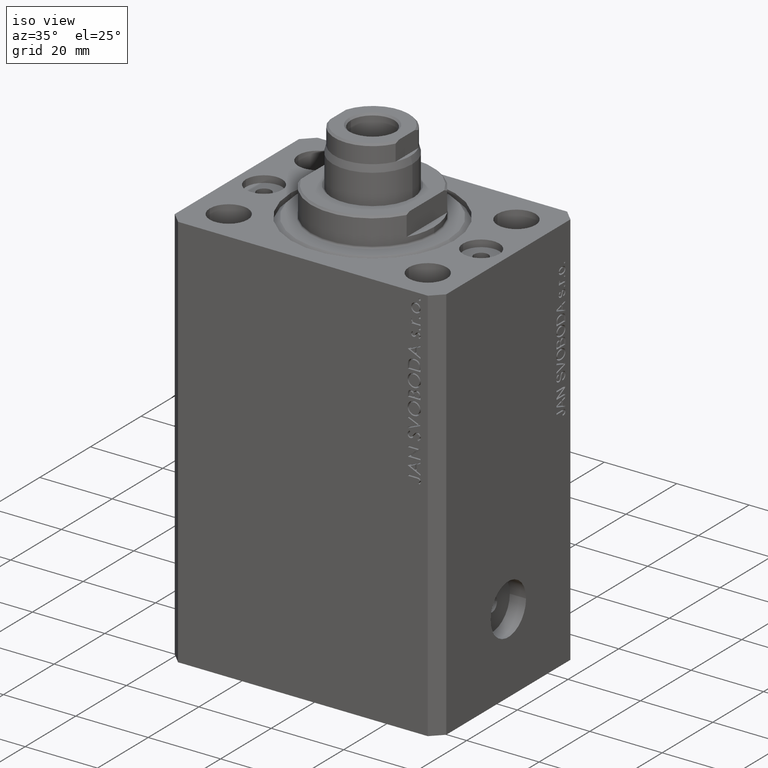
[diagram: clean part render]
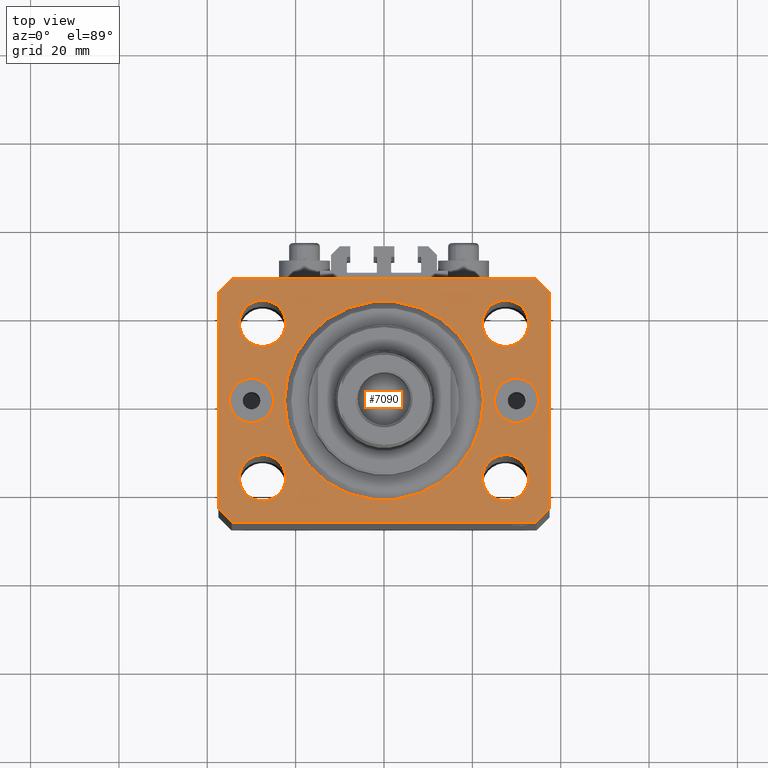
[diagram: tour spotlight — one face highlighted and labeled with its STEP entity id]
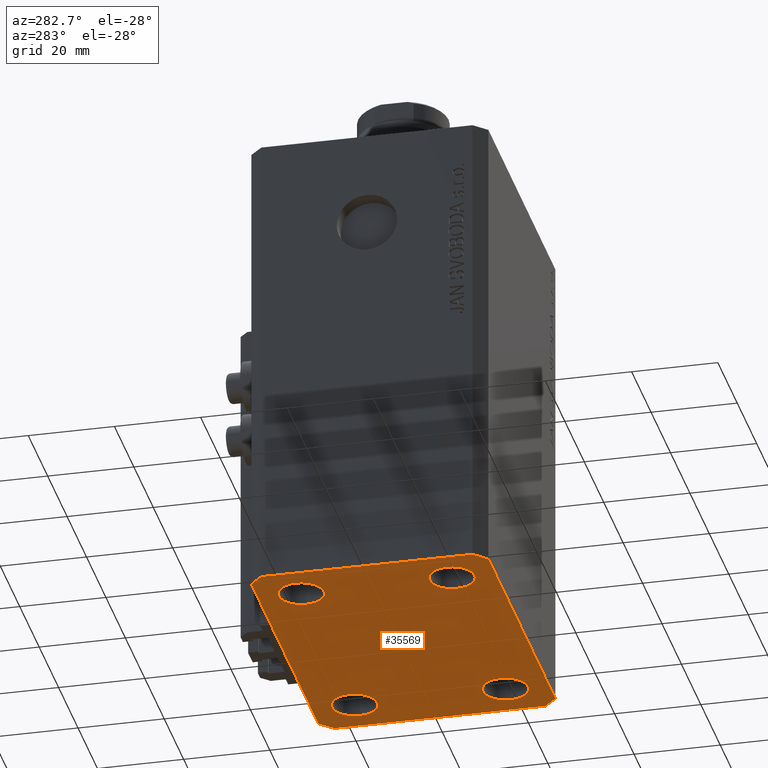
[diagram: tour spotlight — one face highlighted and labeled with its STEP entity id]
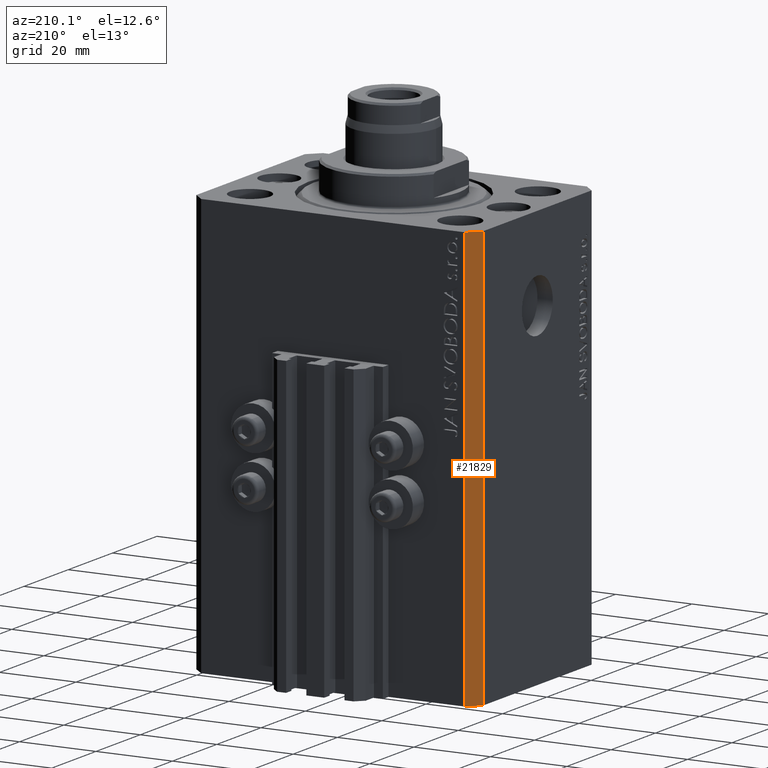
[diagram: tour spotlight — one face highlighted and labeled with its STEP entity id]
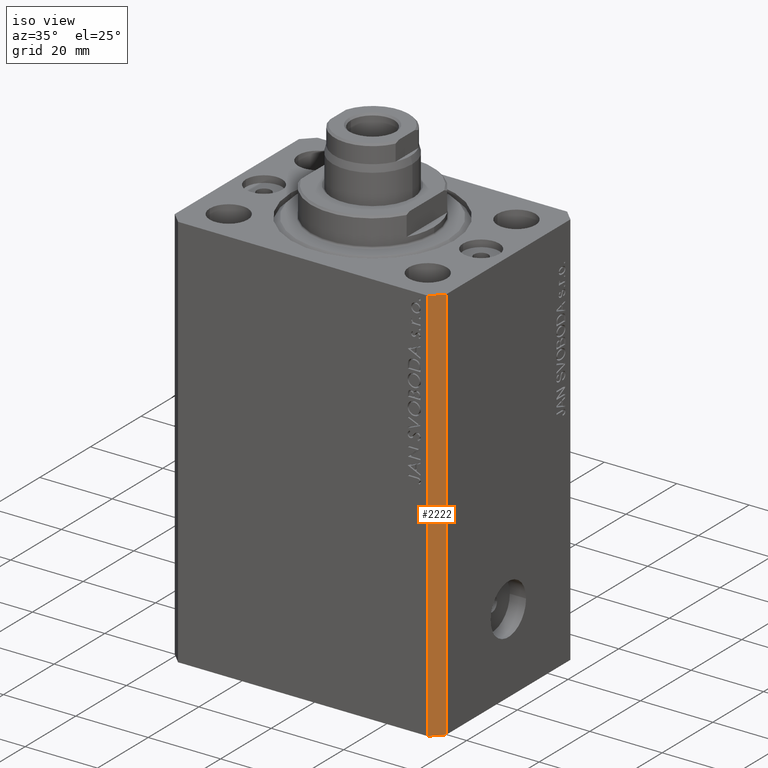
[diagram: tour spotlight — one face highlighted and labeled with its STEP entity id]
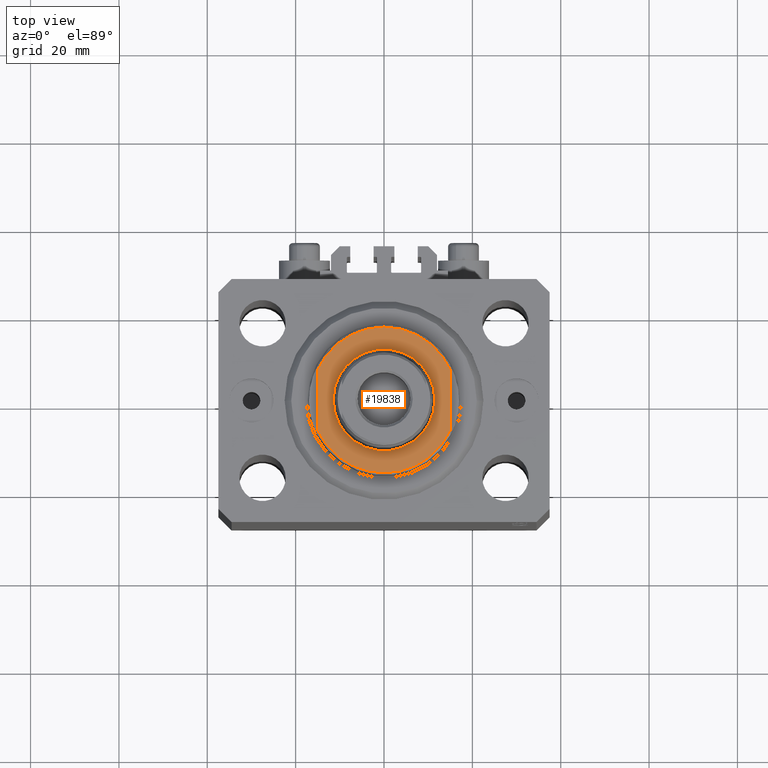
[diagram: tour spotlight — one face highlighted and labeled with its STEP entity id]
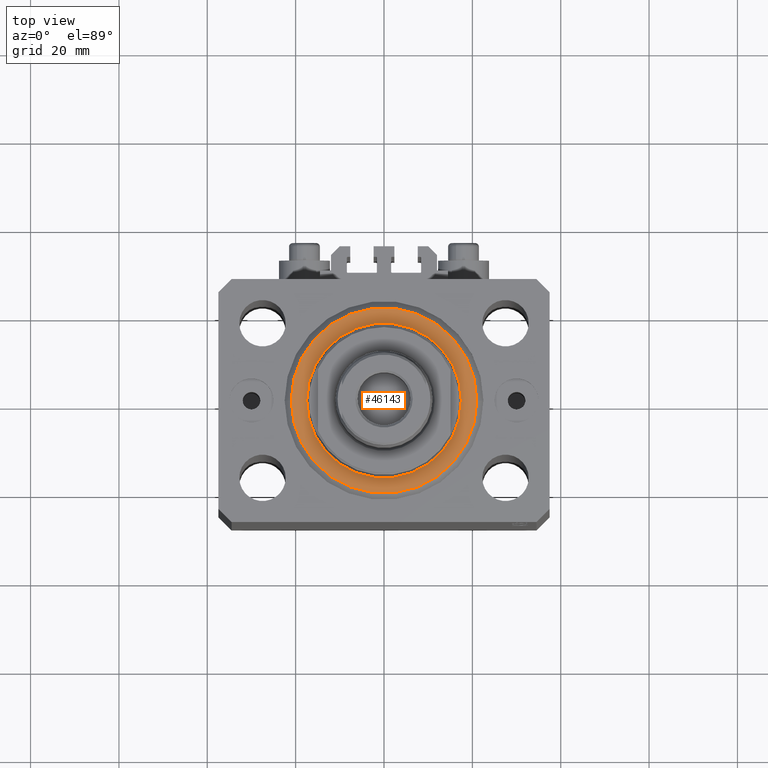
[diagram: tour spotlight — one face highlighted and labeled with its STEP entity id]
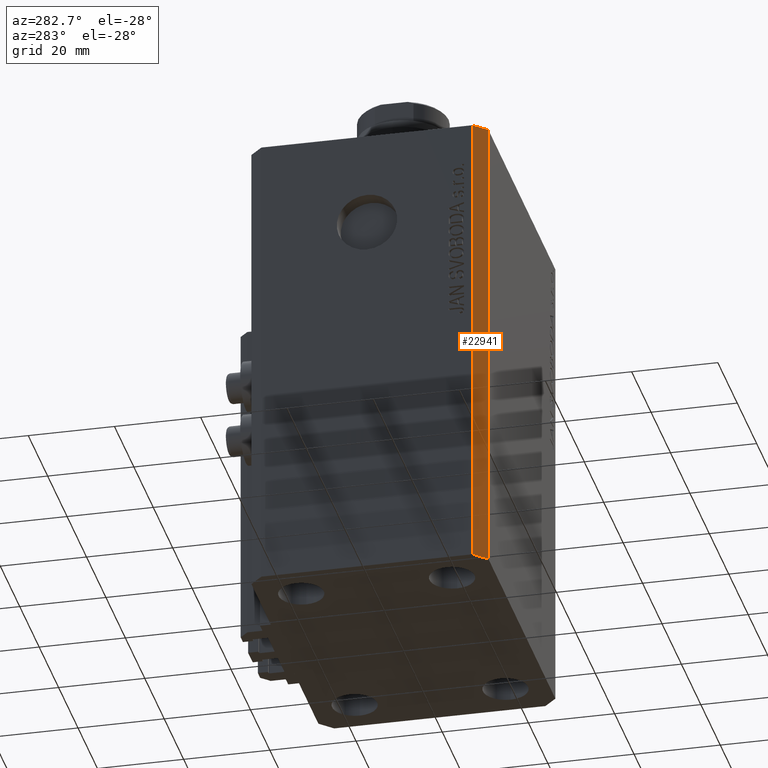
[diagram: tour spotlight — one face highlighted and labeled with its STEP entity id]
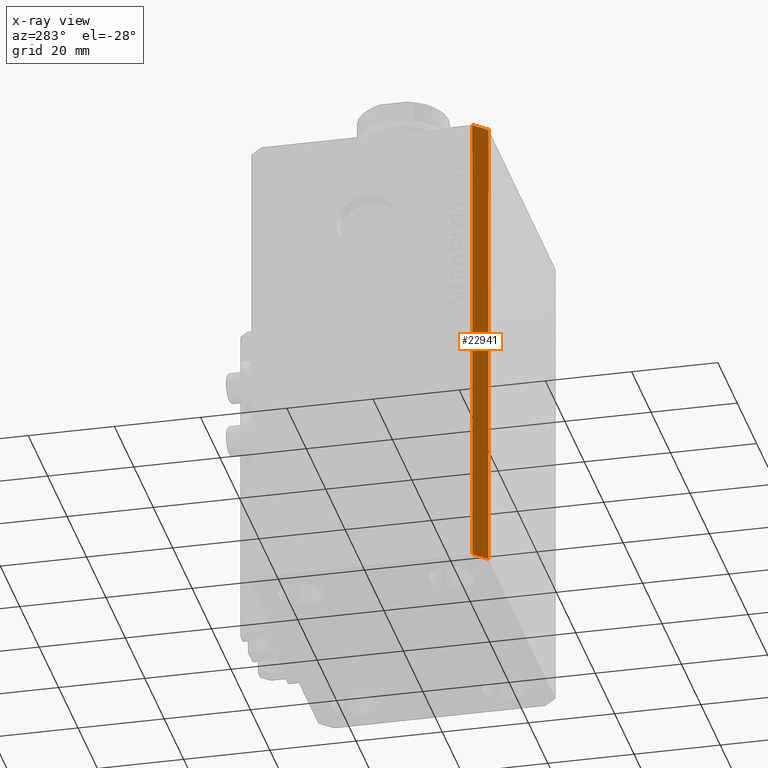
[diagram: x-ray of the same camera — body ghosted, this tour face saturated]
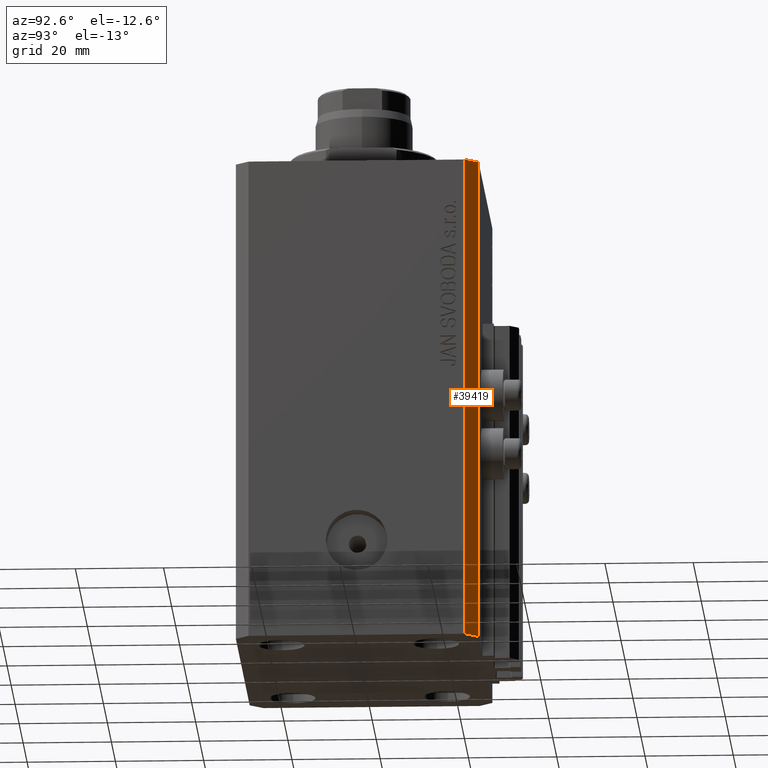
[diagram: tour spotlight — one face highlighted and labeled with its STEP entity id]
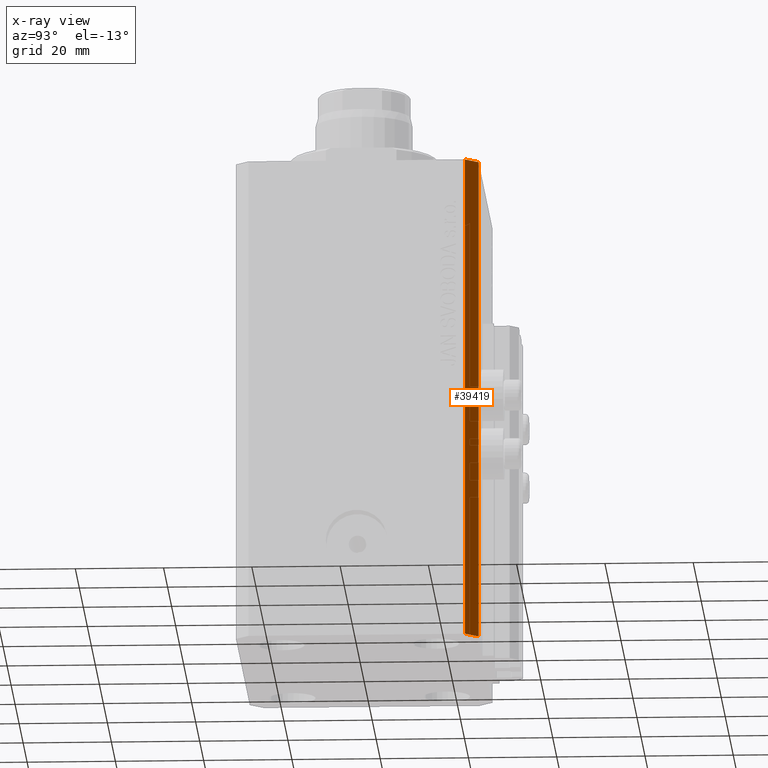
[diagram: x-ray of the same camera — body ghosted, this tour face saturated]
A machine part: a face-by-face anatomy tour. The part has 1023 B-rep faces; the first image is the clean iso view, then the 8 largest visible faces are spotlighted one at a time (largest first), each with its STEP entity span.

Face 1 — top view, entity #7090. In plain terms, the highlighted planar face has unit normal (0, 0, 1).
Definition (entity closure, byte-faithful):
#50 = AXIS2_PLACEMENT_3D ( 'NONE', #43612, #25873, #18543 ) ;
#278 = VERTEX_POINT ( 'NONE', #1542 ) ;
#403 = CARTESIAN_POINT ( 'NONE',  ( 27.49999999999999289, -17.50000000000000000, 0.000000000000000000 ) ) ;
#655 = DIRECTION ( 'NONE',  ( 1.000000000000000000, 0.000000000000000000, 0.000000000000000000 ) ) ;
#694 = ORIENTED_EDGE ( 'NONE', *, *, #12198, .T. ) ;
#714 = ORIENTED_EDGE ( 'NONE', *, *, #32537, .F. ) ;
#833 = CIRCLE ( 'NONE', #35588, 5.250000000000000888 ) ;
#1542 = CARTESIAN_POINT ( 'NONE',  ( 25.00000000000000000, 6.123233995736762338E-16, 0.000000000000000000 ) ) ;
#1549 = DIRECTION ( 'NONE',  ( -0.7071067811865471286, -0.7071067811865479058, 0.000000000000000000 ) ) ;
#1568 = EDGE_CURVE ( 'NONE', #30455, #32214, #17827, .T. ) ;
#1646 = ORIENTED_EDGE ( 'NONE', *, *, #14632, .T. ) ;
#1763 = VECTOR ( 'NONE', #12459, 1000.000000000000114 ) ;
#1964 = ORIENTED_EDGE ( 'NONE', *, *, #15884, .F. ) ;
#2130 = EDGE_LOOP ( 'NONE', ( #24155, #13497 ) ) ;
#2340 = CIRCLE ( 'NONE', #50, 5.250000000000000888 ) ;
#2792 = CARTESIAN_POINT ( 'NONE',  ( 30.00000000000000000, 0.000000000000000000, 0.000000000000000000 ) ) ;
#2811 = VECTOR ( 'NONE', #46576, 1000.000000000000000 ) ;
#3503 = CIRCLE ( 'NONE', #14829, 5.250000000000000888 ) ;
#3750 = CARTESIAN_POINT ( 'NONE',  ( 22.25000000000000000, 17.49999999999999289, 0.000000000000000000 ) ) ;
#4133 = EDGE_CURVE ( 'NONE', #34240, #12233, #3503, .T. ) ;
#4328 = VERTEX_POINT ( 'NONE', #45328 ) ;
#4541 = CIRCLE ( 'NONE', #32469, 5.250000000000000888 ) ;
#4779 = ORIENTED_EDGE ( 'NONE', *, *, #28690, .F. ) ;
#4836 = DIRECTION ( 'NONE',  ( 0.000000000000000000, 0.000000000000000000, 1.000000000000000000 ) ) ;
#4973 = FACE_BOUND ( 'NONE', #29044, .T. ) ;
#5257 = EDGE_LOOP ( 'NONE', ( #41440, #714 ) ) ;
#5274 = EDGE_LOOP ( 'NONE', ( #33661, #24455, #40272, #46314, #694, #21986, #34470, #1646 ) ) ;
#5535 = AXIS2_PLACEMENT_3D ( 'NONE', #6079, #9630, #19173 ) ;
#5716 = EDGE_CURVE ( 'NONE', #14536, #46477, #16562, .T. ) ;
#5719 = CARTESIAN_POINT ( 'NONE',  ( 34.49999999999999289, -27.49999999999999645, 0.000000000000000000 ) ) ;
#6079 = CARTESIAN_POINT ( 'NONE',  ( 0.000000000000000000, 0.000000000000000000, 0.000000000000000000 ) ) ;
#6135 = AXIS2_PLACEMENT_3D ( 'NONE', #6146, #41010, #37915 ) ;
#6146 = CARTESIAN_POINT ( 'NONE',  ( 27.50000000000000000, 17.49999999999999289, 0.000000000000000000 ) ) ;
#6391 = CIRCLE ( 'NONE', #15425, 5.250000000000000888 ) ;
#7020 = CARTESIAN_POINT ( 'NONE',  ( 34.50000000000056843, 27.50000000000000000, 0.000000000000000000 ) ) ;
#7090 = ADVANCED_FACE ( 'NONE', ( #38230, #34688, #12303, #19415, #26747, #40940, #15368, #4973 ), #40466, .T. ) ;
#8128 = EDGE_CURVE ( 'NONE', #278, #42022, #14028, .T. ) ;
#9465 = CIRCLE ( 'NONE', #46470, 5.000000000000000888 ) ;
#9630 = DIRECTION ( 'NONE',  ( 0.000000000000000000, 0.000000000000000000, 1.000000000000000000 ) ) ;
#10062 = DIRECTION ( 'NONE',  ( 0.000000000000000000, -0.000000000000000000, -1.000000000000000000 ) ) ;
#10093 = DIRECTION ( 'NONE',  ( 1.000000000000000000, 0.000000000000000000, 0.000000000000000000 ) ) ;
#10335 = AXIS2_PLACEMENT_3D ( 'NONE', #32287, #10062, #43164 ) ;
#10838 = EDGE_CURVE ( 'NONE', #34090, #15133, #18741, .T. ) ;
#11064 = DIRECTION ( 'NONE',  ( 0.000000000000000000, 0.000000000000000000, 1.000000000000000000 ) ) ;
#11149 = EDGE_CURVE ( 'NONE', #30901, #14536, #21015, .T. ) ;
#12180 = LINE ( 'NONE', #41062, #18913 ) ;
#12198 = EDGE_CURVE ( 'NONE', #46477, #34084, #12231, .T. ) ;
#12231 = LINE ( 'NONE', #26677, #38444 ) ;
#12233 = VERTEX_POINT ( 'NONE', #27150 ) ;
#12303 = FACE_BOUND ( 'NONE', #2130, .T. ) ;
#12459 = DIRECTION ( 'NONE',  ( -0.7071067811865364705, 0.7071067811865584529, 0.000000000000000000 ) ) ;
#13215 = ORIENTED_EDGE ( 'NONE', *, *, #34890, .T. ) ;
#13222 = CARTESIAN_POINT ( 'NONE',  ( -37.49999999999999289, 24.50000000000000000, 0.000000000000000000 ) ) ;
#13497 = ORIENTED_EDGE ( 'NONE', *, *, #26598, .F. ) ;
#13747 = CARTESIAN_POINT ( 'NONE',  ( -22.25000000000000000, 17.49999999999999645, 0.000000000000000000 ) ) ;
#13936 = CARTESIAN_POINT ( 'NONE',  ( -37.49999999999999289, -24.50000000000000000, 0.000000000000000000 ) ) ;
#13978 = CARTESIAN_POINT ( 'NONE',  ( -24.99999999999999645, 0.000000000000000000, 0.000000000000000000 ) ) ;
#14028 = CIRCLE ( 'NONE', #20102, 4.999999999999997335 ) ;
#14428 = VECTOR ( 'NONE', #42103, 1000.000000000000000 ) ;
#14518 = DIRECTION ( 'NONE',  ( 0.000000000000000000, 0.000000000000000000, 1.000000000000000000 ) ) ;
#14536 = VERTEX_POINT ( 'NONE', #44866 ) ;
#14546 = CARTESIAN_POINT ( 'NONE',  ( -34.49999999999999289, 27.50000000000000000, 0.000000000000000000 ) ) ;
#14632 = EDGE_CURVE ( 'NONE', #32214, #23952, #44629, .T. ) ;
#14829 = AXIS2_PLACEMENT_3D ( 'NONE', #403, #29969, #36358 ) ;
#14908 = CARTESIAN_POINT ( 'NONE',  ( -27.49999999999999289, -17.50000000000000000, 0.000000000000000000 ) ) ;
#15096 = CIRCLE ( 'NONE', #27962, 5.250000000000000888 ) ;
#15133 = VERTEX_POINT ( 'NONE', #46430 ) ;
#15368 = FACE_BOUND ( 'NONE', #23526, .T. ) ;
#15425 = AXIS2_PLACEMENT_3D ( 'NONE', #14908, #36683, #16322 ) ;
#15534 = DIRECTION ( 'NONE',  ( 0.000000000000000000, 0.000000000000000000, 1.000000000000000000 ) ) ;
#15537 = VERTEX_POINT ( 'NONE', #3750 ) ;
#15791 = CIRCLE ( 'NONE', #42247, 5.000000000000000888 ) ;
#15884 = EDGE_CURVE ( 'NONE', #29371, #25185, #4541, .T. ) ;
#16232 = EDGE_LOOP ( 'NONE', ( #1964, #4779 ) ) ;
#16322 = DIRECTION ( 'NONE',  ( 1.000000000000000000, 0.000000000000000000, 0.000000000000000000 ) ) ;
#16424 = CARTESIAN_POINT ( 'NONE',  ( 27.50000000000000000, 17.49999999999999289, 0.000000000000000000 ) ) ;
#16562 = LINE ( 'NONE', #13936, #2811 ) ;
#16745 = DIRECTION ( 'NONE',  ( 0.000000000000000000, -0.000000000000000000, -1.000000000000000000 ) ) ;
#17359 = CARTESIAN_POINT ( 'NONE',  ( -32.75000000000000000, 17.49999999999999645, 0.000000000000000000 ) ) ;
#17498 = ORIENTED_EDGE ( 'NONE', *, *, #31497, .F. ) ;
#17827 = LINE ( 'NONE', #32259, #46294 ) ;
#18095 = EDGE_CURVE ( 'NONE', #23952, #27416, #30531, .T. ) ;
#18119 = CARTESIAN_POINT ( 'NONE',  ( -30.00000000000000000, 0.000000000000000000, 0.000000000000000000 ) ) ;
#18335 = EDGE_CURVE ( 'NONE', #4328, #15537, #26539, .T. ) ;
#18543 = DIRECTION ( 'NONE',  ( 1.000000000000000000, 0.000000000000000000, 0.000000000000000000 ) ) ;
#18741 = CIRCLE ( 'NONE', #45187, 22.50000000000000355 ) ;
#18913 = VECTOR ( 'NONE', #1549, 1000.000000000000000 ) ;
#19173 = DIRECTION ( 'NONE',  ( 1.000000000000000000, 0.000000000000000000, -0.000000000000000000 ) ) ;
#19415 = FACE_BOUND ( 'NONE', #20738, .T. ) ;
#19796 = CARTESIAN_POINT ( 'NONE',  ( 37.50000000000051870, 24.49999999999995381, 0.000000000000000000 ) ) ;
#19944 = ORIENTED_EDGE ( 'NONE', *, *, #4133, .F. ) ;
#20052 = EDGE_CURVE ( 'NONE', #30714, #37246, #15096, .T. ) ;
#20102 = AXIS2_PLACEMENT_3D ( 'NONE', #2792, #16745, #27872 ) ;
#20229 = DIRECTION ( 'NONE',  ( 1.000000000000000000, 0.000000000000000000, 0.000000000000000000 ) ) ;
#20738 = EDGE_LOOP ( 'NONE', ( #22683, #19944 ) ) ;
#20852 = CIRCLE ( 'NONE', #32935, 22.50000000000000355 ) ;
#21015 = LINE ( 'NONE', #13222, #30888 ) ;
#21124 = VECTOR ( 'NONE', #41235, 1000.000000000000114 ) ;
#21800 = VERTEX_POINT ( 'NONE', #36566 ) ;
#21986 = ORIENTED_EDGE ( 'NONE', *, *, #37988, .T. ) ;
#22683 = ORIENTED_EDGE ( 'NONE', *, *, #39900, .F. ) ;
#22930 = ORIENTED_EDGE ( 'NONE', *, *, #8128, .T. ) ;
#23526 = EDGE_LOOP ( 'NONE', ( #17498, #46445 ) ) ;
#23952 = VERTEX_POINT ( 'NONE', #7020 ) ;
#24155 = ORIENTED_EDGE ( 'NONE', *, *, #18335, .F. ) ;
#24455 = ORIENTED_EDGE ( 'NONE', *, *, #42581, .T. ) ;
#24489 = DIRECTION ( 'NONE',  ( 1.000000000000000000, 0.000000000000000000, 0.000000000000000000 ) ) ;
#25185 = VERTEX_POINT ( 'NONE', #43465 ) ;
#25252 = ORIENTED_EDGE ( 'NONE', *, *, #41905, .F. ) ;
#25779 = ORIENTED_EDGE ( 'NONE', *, *, #20052, .F. ) ;
#25873 = DIRECTION ( 'NONE',  ( 0.000000000000000000, 0.000000000000000000, 1.000000000000000000 ) ) ;
#26140 = CARTESIAN_POINT ( 'NONE',  ( 37.50000000000051870, 24.49999999999995381, 0.000000000000000000 ) ) ;
#26539 = CIRCLE ( 'NONE', #6135, 5.250000000000000888 ) ;
#26598 = EDGE_CURVE ( 'NONE', #15537, #4328, #32688, .T. ) ;
#26677 = CARTESIAN_POINT ( 'NONE',  ( -34.49999999999998579, -27.49999999999999645, 0.000000000000000000 ) ) ;
#26747 = FACE_BOUND ( 'NONE', #16232, .T. ) ;
#27150 = CARTESIAN_POINT ( 'NONE',  ( 32.74999999999999289, -17.50000000000000000, 0.000000000000000000 ) ) ;
#27416 = VERTEX_POINT ( 'NONE', #14546 ) ;
#27480 = CARTESIAN_POINT ( 'NONE',  ( 0.000000000000000000, 0.000000000000000000, 0.000000000000000000 ) ) ;
#27681 = CARTESIAN_POINT ( 'NONE',  ( 34.50000000000056843, 27.50000000000000000, 0.000000000000000000 ) ) ;
#27872 = DIRECTION ( 'NONE',  ( 1.000000000000000000, 0.000000000000000000, 0.000000000000000000 ) ) ;
#27962 = AXIS2_PLACEMENT_3D ( 'NONE', #28972, #14518, #24489 ) ;
#28491 = DIRECTION ( 'NONE',  ( 1.076236605503979380E-14, 1.000000000000000000, 0.000000000000000000 ) ) ;
#28497 = CARTESIAN_POINT ( 'NONE',  ( -27.49999999999999289, -17.50000000000000000, 0.000000000000000000 ) ) ;
#28690 = EDGE_CURVE ( 'NONE', #25185, #29371, #6391, .T. ) ;
#28972 = CARTESIAN_POINT ( 'NONE',  ( -27.50000000000000000, 17.49999999999999645, 0.000000000000000000 ) ) ;
#29044 = EDGE_LOOP ( 'NONE', ( #13215, #22930 ) ) ;
#29371 = VERTEX_POINT ( 'NONE', #43870 ) ;
#29969 = DIRECTION ( 'NONE',  ( 0.000000000000000000, 0.000000000000000000, 1.000000000000000000 ) ) ;
#30455 = VERTEX_POINT ( 'NONE', #34717 ) ;
#30458 = CARTESIAN_POINT ( 'NONE',  ( -30.00000000000000000, 0.000000000000000000, 0.000000000000000000 ) ) ;
#30531 = LINE ( 'NONE', #27681, #14428 ) ;
#30714 = VERTEX_POINT ( 'NONE', #13747 ) ;
#30888 = VECTOR ( 'NONE', #46093, 1000.000000000000000 ) ;
#30901 = VERTEX_POINT ( 'NONE', #37387 ) ;
#31497 = EDGE_CURVE ( 'NONE', #38060, #21800, #9465, .T. ) ;
#31551 = CARTESIAN_POINT ( 'NONE',  ( 22.24999999999999289, -17.50000000000000000, 0.000000000000000000 ) ) ;
#31580 = DIRECTION ( 'NONE',  ( 0.000000000000000000, 0.000000000000000000, 1.000000000000000000 ) ) ;
#31729 = DIRECTION ( 'NONE',  ( 1.000000000000000000, 0.000000000000000000, 0.000000000000000000 ) ) ;
#32123 = CARTESIAN_POINT ( 'NONE',  ( -34.49999999999998579, -27.49999999999999645, 0.000000000000000000 ) ) ;
#32214 = VERTEX_POINT ( 'NONE', #26140 ) ;
#32259 = CARTESIAN_POINT ( 'NONE',  ( 37.49999999999999289, -24.50000000000000000, 0.000000000000000000 ) ) ;
#32287 = CARTESIAN_POINT ( 'NONE',  ( 30.00000000000000000, 0.000000000000000000, 0.000000000000000000 ) ) ;
#32392 = EDGE_LOOP ( 'NONE', ( #25779, #25252 ) ) ;
#32469 = AXIS2_PLACEMENT_3D ( 'NONE', #28497, #31580, #20229 ) ;
#32537 = EDGE_CURVE ( 'NONE', #15133, #34090, #20852, .T. ) ;
#32688 = CIRCLE ( 'NONE', #36463, 5.250000000000000888 ) ;
#32889 = CARTESIAN_POINT ( 'NONE',  ( 22.50000000000000355, 0.000000000000000000, 0.000000000000000000 ) ) ;
#32935 = AXIS2_PLACEMENT_3D ( 'NONE', #35681, #11064, #655 ) ;
#33075 = CARTESIAN_POINT ( 'NONE',  ( 34.99999999999999289, 0.000000000000000000, 0.000000000000000000 ) ) ;
#33120 = CARTESIAN_POINT ( 'NONE',  ( 34.49999999999999289, -27.49999999999999645, 0.000000000000000000 ) ) ;
#33661 = ORIENTED_EDGE ( 'NONE', *, *, #18095, .T. ) ;
#34084 = VERTEX_POINT ( 'NONE', #33120 ) ;
#34090 = VERTEX_POINT ( 'NONE', #32889 ) ;
#34240 = VERTEX_POINT ( 'NONE', #31551 ) ;
#34245 = DIRECTION ( 'NONE',  ( 1.000000000000000000, 0.000000000000000000, 0.000000000000000000 ) ) ;
#34250 = DIRECTION ( 'NONE',  ( 1.000000000000000000, 0.000000000000000000, 0.000000000000000000 ) ) ;
#34470 = ORIENTED_EDGE ( 'NONE', *, *, #1568, .T. ) ;
#34688 = FACE_BOUND ( 'NONE', #32392, .T. ) ;
#34717 = CARTESIAN_POINT ( 'NONE',  ( 37.49999999999999289, -24.50000000000000000, 0.000000000000000000 ) ) ;
#34890 = EDGE_CURVE ( 'NONE', #42022, #278, #43567, .T. ) ;
#35588 = AXIS2_PLACEMENT_3D ( 'NONE', #38775, #42328, #36379 ) ;
#35681 = CARTESIAN_POINT ( 'NONE',  ( 0.000000000000000000, 0.000000000000000000, 0.000000000000000000 ) ) ;
#36358 = DIRECTION ( 'NONE',  ( 1.000000000000000000, 0.000000000000000000, 0.000000000000000000 ) ) ;
#36379 = DIRECTION ( 'NONE',  ( 1.000000000000000000, 0.000000000000000000, 0.000000000000000000 ) ) ;
#36463 = AXIS2_PLACEMENT_3D ( 'NONE', #16424, #4836, #37952 ) ;
#36566 = CARTESIAN_POINT ( 'NONE',  ( -34.99999999999999289, 6.123233995736768255E-16, 0.000000000000000000 ) ) ;
#36599 = EDGE_CURVE ( 'NONE', #21800, #38060, #15791, .T. ) ;
#36683 = DIRECTION ( 'NONE',  ( 0.000000000000000000, 0.000000000000000000, 1.000000000000000000 ) ) ;
#37246 = VERTEX_POINT ( 'NONE', #17359 ) ;
#37387 = CARTESIAN_POINT ( 'NONE',  ( -37.49999999999999289, 24.50000000000000000, 0.000000000000000000 ) ) ;
#37677 = LINE ( 'NONE', #5719, #21124 ) ;
#37915 = DIRECTION ( 'NONE',  ( 1.000000000000000000, 0.000000000000000000, 0.000000000000000000 ) ) ;
#37952 = DIRECTION ( 'NONE',  ( 1.000000000000000000, 0.000000000000000000, 0.000000000000000000 ) ) ;
#37988 = EDGE_CURVE ( 'NONE', #34084, #30455, #37677, .T. ) ;
#38060 = VERTEX_POINT ( 'NONE', #13978 ) ;
#38230 = FACE_OUTER_BOUND ( 'NONE', #5274, .T. ) ;
#38444 = VECTOR ( 'NONE', #34250, 1000.000000000000000 ) ;
#38775 = CARTESIAN_POINT ( 'NONE',  ( -27.50000000000000000, 17.49999999999999645, 0.000000000000000000 ) ) ;
#39885 = DIRECTION ( 'NONE',  ( 0.000000000000000000, 0.000000000000000000, 1.000000000000000000 ) ) ;
#39900 = EDGE_CURVE ( 'NONE', #12233, #34240, #2340, .T. ) ;
#40272 = ORIENTED_EDGE ( 'NONE', *, *, #11149, .T. ) ;
#40466 = PLANE ( 'NONE',  #5535 ) ;
#40940 = FACE_BOUND ( 'NONE', #5257, .T. ) ;
#41010 = DIRECTION ( 'NONE',  ( 0.000000000000000000, 0.000000000000000000, 1.000000000000000000 ) ) ;
#41062 = CARTESIAN_POINT ( 'NONE',  ( -34.49999999999999289, 27.50000000000000000, 0.000000000000000000 ) ) ;
#41235 = DIRECTION ( 'NONE',  ( 0.7071067811865474617, 0.7071067811865474617, 0.000000000000000000 ) ) ;
#41440 = ORIENTED_EDGE ( 'NONE', *, *, #10838, .F. ) ;
#41905 = EDGE_CURVE ( 'NONE', #37246, #30714, #833, .T. ) ;
#42022 = VERTEX_POINT ( 'NONE', #33075 ) ;
#42103 = DIRECTION ( 'NONE',  ( -1.000000000000000000, 0.000000000000000000, 0.000000000000000000 ) ) ;
#42247 = AXIS2_PLACEMENT_3D ( 'NONE', #30458, #15534, #34245 ) ;
#42328 = DIRECTION ( 'NONE',  ( 0.000000000000000000, 0.000000000000000000, 1.000000000000000000 ) ) ;
#42371 = DIRECTION ( 'NONE',  ( 0.000000000000000000, 0.000000000000000000, 1.000000000000000000 ) ) ;
#42581 = EDGE_CURVE ( 'NONE', #27416, #30901, #12180, .T. ) ;
#43164 = DIRECTION ( 'NONE',  ( 1.000000000000000000, 0.000000000000000000, 0.000000000000000000 ) ) ;
#43465 = CARTESIAN_POINT ( 'NONE',  ( -32.74999999999999289, -17.50000000000000000, 0.000000000000000000 ) ) ;
#43567 = CIRCLE ( 'NONE', #10335, 4.999999999999997335 ) ;
#43612 = CARTESIAN_POINT ( 'NONE',  ( 27.49999999999999289, -17.50000000000000000, 0.000000000000000000 ) ) ;
#43870 = CARTESIAN_POINT ( 'NONE',  ( -22.24999999999999289, -17.50000000000000000, 0.000000000000000000 ) ) ;
#44629 = LINE ( 'NONE', #19796, #1763 ) ;
#44866 = CARTESIAN_POINT ( 'NONE',  ( -37.49999999999999289, -24.50000000000000000, 0.000000000000000000 ) ) ;
#45187 = AXIS2_PLACEMENT_3D ( 'NONE', #27480, #42371, #31729 ) ;
#45328 = CARTESIAN_POINT ( 'NONE',  ( 32.75000000000000000, 17.49999999999999289, 0.000000000000000000 ) ) ;
#46093 = DIRECTION ( 'NONE',  ( 0.000000000000000000, -1.000000000000000000, 0.000000000000000000 ) ) ;
#46294 = VECTOR ( 'NONE', #28491, 1000.000000000000000 ) ;
#46314 = ORIENTED_EDGE ( 'NONE', *, *, #5716, .T. ) ;
#46430 = CARTESIAN_POINT ( 'NONE',  ( -22.50000000000000355, 2.755455298081545172E-15, 0.000000000000000000 ) ) ;
#46445 = ORIENTED_EDGE ( 'NONE', *, *, #36599, .F. ) ;
#46470 = AXIS2_PLACEMENT_3D ( 'NONE', #18119, #39885, #10093 ) ;
#46477 = VERTEX_POINT ( 'NONE', #32123 ) ;
#46576 = DIRECTION ( 'NONE',  ( 0.7071067811865483499, -0.7071067811865466846, 0.000000000000000000 ) ) ;

Face 2 — auxiliary view, entity #35569. In plain terms, the highlighted planar face has unit normal (0, 0, 1).
Definition (entity closure, byte-faithful):
#297 = VECTOR ( 'NONE', #5869, 1000.000000000000000 ) ;
#610 = CARTESIAN_POINT ( 'NONE',  ( 27.50000000000000000, 17.49999999999999289, -110.0000000000000000 ) ) ;
#832 = VECTOR ( 'NONE', #970, 1000.000000000000000 ) ;
#870 = VERTEX_POINT ( 'NONE', #40225 ) ;
#970 = DIRECTION ( 'NONE',  ( 0.7071067811865483499, -0.7071067811865466846, 0.000000000000000000 ) ) ;
#1211 = CARTESIAN_POINT ( 'NONE',  ( -37.49999999999999289, -24.50000000000000000, -110.0000000000000000 ) ) ;
#1235 = DIRECTION ( 'NONE',  ( -0.000000000000000000, -0.000000000000000000, -1.000000000000000000 ) ) ;
#1258 = VERTEX_POINT ( 'NONE', #36618 ) ;
#1480 = VECTOR ( 'NONE', #7130, 1000.000000000000000 ) ;
#1892 = LINE ( 'NONE', #8040, #24445 ) ;
#1922 = LINE ( 'NONE', #1211, #832 ) ;
#2053 = EDGE_CURVE ( 'NONE', #10742, #15690, #19917, .T. ) ;
#2116 = FACE_BOUND ( 'NONE', #13003, .T. ) ;
#2737 = DIRECTION ( 'NONE',  ( -0.7071067811865364705, 0.7071067811865584529, 0.000000000000000000 ) ) ;
#3173 = DIRECTION ( 'NONE',  ( -0.000000000000000000, -0.000000000000000000, -1.000000000000000000 ) ) ;
#3356 = CIRCLE ( 'NONE', #27551, 5.250000000000000888 ) ;
#3669 = PLANE ( 'NONE',  #17869 ) ;
#3989 = AXIS2_PLACEMENT_3D ( 'NONE', #17549, #6212, #27762 ) ;
#4179 = CARTESIAN_POINT ( 'NONE',  ( -34.49999999999999289, 27.50000000000000000, -110.0000000000000000 ) ) ;
#4311 = VERTEX_POINT ( 'NONE', #13150 ) ;
#4421 = ORIENTED_EDGE ( 'NONE', *, *, #39621, .F. ) ;
#4696 = ORIENTED_EDGE ( 'NONE', *, *, #19369, .F. ) ;
#5187 = DIRECTION ( 'NONE',  ( 1.000000000000000000, 0.000000000000000000, 0.000000000000000000 ) ) ;
#5202 = DIRECTION ( 'NONE',  ( -0.000000000000000000, -0.000000000000000000, -1.000000000000000000 ) ) ;
#5331 = CARTESIAN_POINT ( 'NONE',  ( -37.49999999999999289, -24.50000000000000000, -110.0000000000000000 ) ) ;
#5572 = CARTESIAN_POINT ( 'NONE',  ( 34.49999999999999289, -27.49999999999999645, -110.0000000000000000 ) ) ;
#5869 = DIRECTION ( 'NONE',  ( 0.000000000000000000, -1.000000000000000000, 0.000000000000000000 ) ) ;
#6212 = DIRECTION ( 'NONE',  ( -0.000000000000000000, -0.000000000000000000, -1.000000000000000000 ) ) ;
#6272 = LINE ( 'NONE', #5572, #46086 ) ;
#6383 = CARTESIAN_POINT ( 'NONE',  ( -34.49999999999998579, -27.49999999999999645, -110.0000000000000000 ) ) ;
#6438 = ORIENTED_EDGE ( 'NONE', *, *, #2053, .F. ) ;
#6455 = AXIS2_PLACEMENT_3D ( 'NONE', #37189, #1235, #5187 ) ;
#7130 = DIRECTION ( 'NONE',  ( 1.076236605503979380E-14, 1.000000000000000000, 0.000000000000000000 ) ) ;
#7264 = EDGE_LOOP ( 'NONE', ( #4421, #32464 ) ) ;
#8040 = CARTESIAN_POINT ( 'NONE',  ( -34.49999999999999289, 27.50000000000000000, -110.0000000000000000 ) ) ;
#9086 = CIRCLE ( 'NONE', #21166, 5.250000000000000888 ) ;
#9232 = VERTEX_POINT ( 'NONE', #4179 ) ;
#9455 = CARTESIAN_POINT ( 'NONE',  ( -27.49999999999999289, -17.50000000000000000, -110.0000000000000000 ) ) ;
#10264 = CARTESIAN_POINT ( 'NONE',  ( 27.49999999999999289, -17.50000000000000000, -110.0000000000000000 ) ) ;
#10742 = VERTEX_POINT ( 'NONE', #12095 ) ;
#10861 = CIRCLE ( 'NONE', #37321, 5.250000000000000888 ) ;
#12095 = CARTESIAN_POINT ( 'NONE',  ( 22.25000000000000000, 17.49999999999999289, -110.0000000000000000 ) ) ;
#12097 = ORIENTED_EDGE ( 'NONE', *, *, #21247, .F. ) ;
#12436 = LINE ( 'NONE', #20936, #33224 ) ;
#13003 = EDGE_LOOP ( 'NONE', ( #41574, #6438 ) ) ;
#13133 = CARTESIAN_POINT ( 'NONE',  ( -22.25000000000000000, 17.49999999999999645, -110.0000000000000000 ) ) ;
#13150 = CARTESIAN_POINT ( 'NONE',  ( 34.50000000000056843, 27.50000000000000000, -110.0000000000000000 ) ) ;
#13354 = CARTESIAN_POINT ( 'NONE',  ( -27.50000000000000000, 17.49999999999999645, -110.0000000000000000 ) ) ;
#13431 = CARTESIAN_POINT ( 'NONE',  ( 34.49999999999999289, -27.49999999999999645, -110.0000000000000000 ) ) ;
#13598 = CIRCLE ( 'NONE', #35518, 5.250000000000000888 ) ;
#14155 = DIRECTION ( 'NONE',  ( -0.000000000000000000, -0.000000000000000000, -1.000000000000000000 ) ) ;
#14300 = FACE_BOUND ( 'NONE', #7264, .T. ) ;
#14368 = ORIENTED_EDGE ( 'NONE', *, *, #26067, .F. ) ;
#14963 = CARTESIAN_POINT ( 'NONE',  ( 37.49999999999999289, -24.50000000000000000, -110.0000000000000000 ) ) ;
#15051 = EDGE_LOOP ( 'NONE', ( #14368, #33204, #4696, #26814, #35301, #26461, #32664, #32204 ) ) ;
#15690 = VERTEX_POINT ( 'NONE', #19356 ) ;
#17358 = EDGE_CURVE ( 'NONE', #18998, #36822, #1922, .T. ) ;
#17549 = CARTESIAN_POINT ( 'NONE',  ( -27.49999999999999289, -17.50000000000000000, -110.0000000000000000 ) ) ;
#17626 = FACE_BOUND ( 'NONE', #34880, .T. ) ;
#17689 = VERTEX_POINT ( 'NONE', #13431 ) ;
#17866 = FACE_BOUND ( 'NONE', #24771, .T. ) ;
#17869 = AXIS2_PLACEMENT_3D ( 'NONE', #32065, #30975, #46487 ) ;
#18998 = VERTEX_POINT ( 'NONE', #5331 ) ;
#19062 = EDGE_CURVE ( 'NONE', #43081, #4311, #12436, .T. ) ;
#19206 = EDGE_CURVE ( 'NONE', #15690, #10742, #36997, .T. ) ;
#19356 = CARTESIAN_POINT ( 'NONE',  ( 32.75000000000000000, 17.49999999999999289, -110.0000000000000000 ) ) ;
#19369 = EDGE_CURVE ( 'NONE', #28385, #43081, #43095, .T. ) ;
#19715 = EDGE_CURVE ( 'NONE', #36822, #17689, #42351, .T. ) ;
#19780 = DIRECTION ( 'NONE',  ( 0.7071067811865474617, 0.7071067811865474617, 0.000000000000000000 ) ) ;
#19895 = EDGE_CURVE ( 'NONE', #17689, #28385, #6272, .T. ) ;
#19917 = CIRCLE ( 'NONE', #39554, 5.250000000000000888 ) ;
#20750 = EDGE_CURVE ( 'NONE', #45963, #18998, #28575, .T. ) ;
#20825 = DIRECTION ( 'NONE',  ( 1.000000000000000000, 0.000000000000000000, 0.000000000000000000 ) ) ;
#20881 = CARTESIAN_POINT ( 'NONE',  ( 37.49999999999999289, -24.50000000000000000, -110.0000000000000000 ) ) ;
#20936 = CARTESIAN_POINT ( 'NONE',  ( 37.50000000000051870, 24.49999999999995381, -110.0000000000000000 ) ) ;
#21166 = AXIS2_PLACEMENT_3D ( 'NONE', #9455, #5202, #23889 ) ;
#21247 = EDGE_CURVE ( 'NONE', #44345, #870, #10861, .T. ) ;
#21269 = DIRECTION ( 'NONE',  ( 1.000000000000000000, 0.000000000000000000, 0.000000000000000000 ) ) ;
#21571 = CARTESIAN_POINT ( 'NONE',  ( 32.74999999999999289, -17.50000000000000000, -110.0000000000000000 ) ) ;
#22467 = DIRECTION ( 'NONE',  ( -0.7071067811865471286, -0.7071067811865479058, 0.000000000000000000 ) ) ;
#23287 = VERTEX_POINT ( 'NONE', #21571 ) ;
#23889 = DIRECTION ( 'NONE',  ( 1.000000000000000000, 0.000000000000000000, 0.000000000000000000 ) ) ;
#24070 = CARTESIAN_POINT ( 'NONE',  ( 37.50000000000051870, 24.49999999999995381, -110.0000000000000000 ) ) ;
#24445 = VECTOR ( 'NONE', #22467, 1000.000000000000000 ) ;
#24771 = EDGE_LOOP ( 'NONE', ( #45852, #39895 ) ) ;
#24877 = ORIENTED_EDGE ( 'NONE', *, *, #31697, .F. ) ;
#24902 = VECTOR ( 'NONE', #20825, 1000.000000000000000 ) ;
#25772 = EDGE_CURVE ( 'NONE', #9232, #45963, #1892, .T. ) ;
#26067 = EDGE_CURVE ( 'NONE', #4311, #9232, #34771, .T. ) ;
#26461 = ORIENTED_EDGE ( 'NONE', *, *, #17358, .F. ) ;
#26814 = ORIENTED_EDGE ( 'NONE', *, *, #19895, .F. ) ;
#27551 = AXIS2_PLACEMENT_3D ( 'NONE', #10264, #3173, #38667 ) ;
#27762 = DIRECTION ( 'NONE',  ( 1.000000000000000000, 0.000000000000000000, 0.000000000000000000 ) ) ;
#28347 = EDGE_CURVE ( 'NONE', #1258, #23287, #3356, .T. ) ;
#28385 = VERTEX_POINT ( 'NONE', #14963 ) ;
#28575 = LINE ( 'NONE', #42078, #297 ) ;
#28885 = VERTEX_POINT ( 'NONE', #42337 ) ;
#30837 = DIRECTION ( 'NONE',  ( -0.000000000000000000, -0.000000000000000000, -1.000000000000000000 ) ) ;
#30975 = DIRECTION ( 'NONE',  ( 0.000000000000000000, 0.000000000000000000, 1.000000000000000000 ) ) ;
#31222 = CARTESIAN_POINT ( 'NONE',  ( 34.50000000000056843, 27.50000000000000000, -110.0000000000000000 ) ) ;
#31697 = EDGE_CURVE ( 'NONE', #870, #44345, #45740, .T. ) ;
#31911 = CIRCLE ( 'NONE', #3989, 5.250000000000000888 ) ;
#32065 = CARTESIAN_POINT ( 'NONE',  ( 0.000000000000000000, 0.000000000000000000, -110.0000000000000000 ) ) ;
#32204 = ORIENTED_EDGE ( 'NONE', *, *, #25772, .F. ) ;
#32464 = ORIENTED_EDGE ( 'NONE', *, *, #28347, .F. ) ;
#32664 = ORIENTED_EDGE ( 'NONE', *, *, #20750, .F. ) ;
#33204 = ORIENTED_EDGE ( 'NONE', *, *, #19062, .F. ) ;
#33224 = VECTOR ( 'NONE', #2737, 1000.000000000000114 ) ;
#34771 = LINE ( 'NONE', #31222, #41073 ) ;
#34880 = EDGE_LOOP ( 'NONE', ( #12097, #24877 ) ) ;
#35003 = DIRECTION ( 'NONE',  ( -1.000000000000000000, 0.000000000000000000, 0.000000000000000000 ) ) ;
#35301 = ORIENTED_EDGE ( 'NONE', *, *, #19715, .F. ) ;
#35487 = AXIS2_PLACEMENT_3D ( 'NONE', #41946, #30837, #37926 ) ;
#35518 = AXIS2_PLACEMENT_3D ( 'NONE', #36157, #14155, #21269 ) ;
#35569 = ADVANCED_FACE ( 'NONE', ( #17866, #14300, #2116, #17626, #39626 ), #3669, .F. ) ;
#36157 = CARTESIAN_POINT ( 'NONE',  ( 27.49999999999999289, -17.50000000000000000, -110.0000000000000000 ) ) ;
#36618 = CARTESIAN_POINT ( 'NONE',  ( 22.24999999999999289, -17.50000000000000000, -110.0000000000000000 ) ) ;
#36822 = VERTEX_POINT ( 'NONE', #45343 ) ;
#36851 = CARTESIAN_POINT ( 'NONE',  ( -22.24999999999999289, -17.50000000000000000, -110.0000000000000000 ) ) ;
#36997 = CIRCLE ( 'NONE', #35487, 5.250000000000000888 ) ;
#37189 = CARTESIAN_POINT ( 'NONE',  ( -27.50000000000000000, 17.49999999999999645, -110.0000000000000000 ) ) ;
#37321 = AXIS2_PLACEMENT_3D ( 'NONE', #13354, #46452, #42218 ) ;
#37926 = DIRECTION ( 'NONE',  ( 1.000000000000000000, 0.000000000000000000, 0.000000000000000000 ) ) ;
#38667 = DIRECTION ( 'NONE',  ( 1.000000000000000000, 0.000000000000000000, 0.000000000000000000 ) ) ;
#39424 = DIRECTION ( 'NONE',  ( 1.000000000000000000, 0.000000000000000000, 0.000000000000000000 ) ) ;
#39554 = AXIS2_PLACEMENT_3D ( 'NONE', #610, #46742, #39424 ) ;
#39621 = EDGE_CURVE ( 'NONE', #23287, #1258, #13598, .T. ) ;
#39626 = FACE_OUTER_BOUND ( 'NONE', #15051, .T. ) ;
#39895 = ORIENTED_EDGE ( 'NONE', *, *, #44697, .F. ) ;
#40225 = CARTESIAN_POINT ( 'NONE',  ( -32.75000000000000000, 17.49999999999999645, -110.0000000000000000 ) ) ;
#41073 = VECTOR ( 'NONE', #35003, 1000.000000000000000 ) ;
#41574 = ORIENTED_EDGE ( 'NONE', *, *, #19206, .F. ) ;
#41946 = CARTESIAN_POINT ( 'NONE',  ( 27.50000000000000000, 17.49999999999999289, -110.0000000000000000 ) ) ;
#42026 = VERTEX_POINT ( 'NONE', #36851 ) ;
#42078 = CARTESIAN_POINT ( 'NONE',  ( -37.49999999999999289, 24.50000000000000000, -110.0000000000000000 ) ) ;
#42218 = DIRECTION ( 'NONE',  ( 1.000000000000000000, 0.000000000000000000, 0.000000000000000000 ) ) ;
#42337 = CARTESIAN_POINT ( 'NONE',  ( -32.74999999999999289, -17.50000000000000000, -110.0000000000000000 ) ) ;
#42351 = LINE ( 'NONE', #6383, #24902 ) ;
#42750 = EDGE_CURVE ( 'NONE', #42026, #28885, #9086, .T. ) ;
#43081 = VERTEX_POINT ( 'NONE', #24070 ) ;
#43095 = LINE ( 'NONE', #20881, #1480 ) ;
#43166 = CARTESIAN_POINT ( 'NONE',  ( -37.49999999999999289, 24.50000000000000000, -110.0000000000000000 ) ) ;
#44345 = VERTEX_POINT ( 'NONE', #13133 ) ;
#44697 = EDGE_CURVE ( 'NONE', #28885, #42026, #31911, .T. ) ;
#45343 = CARTESIAN_POINT ( 'NONE',  ( -34.49999999999998579, -27.49999999999999645, -110.0000000000000000 ) ) ;
#45740 = CIRCLE ( 'NONE', #6455, 5.250000000000000888 ) ;
#45852 = ORIENTED_EDGE ( 'NONE', *, *, #42750, .F. ) ;
#45963 = VERTEX_POINT ( 'NONE', #43166 ) ;
#46086 = VECTOR ( 'NONE', #19780, 1000.000000000000114 ) ;
#46452 = DIRECTION ( 'NONE',  ( -0.000000000000000000, -0.000000000000000000, -1.000000000000000000 ) ) ;
#46487 = DIRECTION ( 'NONE',  ( 1.000000000000000000, 0.000000000000000000, -0.000000000000000000 ) ) ;
#46742 = DIRECTION ( 'NONE',  ( -0.000000000000000000, -0.000000000000000000, -1.000000000000000000 ) ) ;

Face 3 — auxiliary view, entity #21829. In plain terms, the highlighted planar face has unit normal (-0.7071, 0.7071, 0).
Definition (entity closure, byte-faithful):
#848 = DIRECTION ( 'NONE',  ( -0.7071067811865479058, 0.7071067811865471286, 0.000000000000000000 ) ) ;
#1549 = DIRECTION ( 'NONE',  ( -0.7071067811865471286, -0.7071067811865479058, 0.000000000000000000 ) ) ;
#1892 = LINE ( 'NONE', #8040, #24445 ) ;
#4179 = CARTESIAN_POINT ( 'NONE',  ( -34.49999999999999289, 27.50000000000000000, -110.0000000000000000 ) ) ;
#8040 = CARTESIAN_POINT ( 'NONE',  ( -34.49999999999999289, 27.50000000000000000, -110.0000000000000000 ) ) ;
#8170 = PLANE ( 'NONE',  #32821 ) ;
#9232 = VERTEX_POINT ( 'NONE', #4179 ) ;
#9913 = VECTOR ( 'NONE', #25281, 1000.000000000000000 ) ;
#12180 = LINE ( 'NONE', #41062, #18913 ) ;
#14360 = ORIENTED_EDGE ( 'NONE', *, *, #29129, .T. ) ;
#14546 = CARTESIAN_POINT ( 'NONE',  ( -34.49999999999999289, 27.50000000000000000, 0.000000000000000000 ) ) ;
#17780 = EDGE_LOOP ( 'NONE', ( #38520, #33803, #40674, #14360 ) ) ;
#18419 = EDGE_CURVE ( 'NONE', #9232, #27416, #35698, .T. ) ;
#18481 = VECTOR ( 'NONE', #19094, 1000.000000000000000 ) ;
#18913 = VECTOR ( 'NONE', #1549, 1000.000000000000000 ) ;
#19094 = DIRECTION ( 'NONE',  ( 0.000000000000000000, 0.000000000000000000, 1.000000000000000000 ) ) ;
#19338 = LINE ( 'NONE', #19570, #18481 ) ;
#19570 = CARTESIAN_POINT ( 'NONE',  ( -37.49999999999999289, 24.50000000000000000, -110.0000000000000000 ) ) ;
#21270 = CARTESIAN_POINT ( 'NONE',  ( -34.49999999999999289, 27.50000000000000000, -110.0000000000000000 ) ) ;
#21829 = ADVANCED_FACE ( 'NONE', ( #43662 ), #8170, .T. ) ;
#22467 = DIRECTION ( 'NONE',  ( -0.7071067811865471286, -0.7071067811865479058, 0.000000000000000000 ) ) ;
#24445 = VECTOR ( 'NONE', #22467, 1000.000000000000000 ) ;
#25281 = DIRECTION ( 'NONE',  ( 0.000000000000000000, 0.000000000000000000, 1.000000000000000000 ) ) ;
#25772 = EDGE_CURVE ( 'NONE', #9232, #45963, #1892, .T. ) ;
#27416 = VERTEX_POINT ( 'NONE', #14546 ) ;
#29129 = EDGE_CURVE ( 'NONE', #45963, #30901, #19338, .T. ) ;
#30901 = VERTEX_POINT ( 'NONE', #37387 ) ;
#32821 = AXIS2_PLACEMENT_3D ( 'NONE', #44368, #848, #37042 ) ;
#33803 = ORIENTED_EDGE ( 'NONE', *, *, #18419, .F. ) ;
#35698 = LINE ( 'NONE', #21270, #9913 ) ;
#37042 = DIRECTION ( 'NONE',  ( -0.7071067811865471286, -0.7071067811865479058, 0.000000000000000000 ) ) ;
#37387 = CARTESIAN_POINT ( 'NONE',  ( -37.49999999999999289, 24.50000000000000000, 0.000000000000000000 ) ) ;
#38520 = ORIENTED_EDGE ( 'NONE', *, *, #42581, .F. ) ;
#40674 = ORIENTED_EDGE ( 'NONE', *, *, #25772, .T. ) ;
#41062 = CARTESIAN_POINT ( 'NONE',  ( -34.49999999999999289, 27.50000000000000000, 0.000000000000000000 ) ) ;
#42581 = EDGE_CURVE ( 'NONE', #27416, #30901, #12180, .T. ) ;
#43166 = CARTESIAN_POINT ( 'NONE',  ( -37.49999999999999289, 24.50000000000000000, -110.0000000000000000 ) ) ;
#43662 = FACE_OUTER_BOUND ( 'NONE', #17780, .T. ) ;
#44368 = CARTESIAN_POINT ( 'NONE',  ( -34.49999999999999289, 27.50000000000000000, -110.0000000000000000 ) ) ;
#45963 = VERTEX_POINT ( 'NONE', #43166 ) ;

Face 4 — iso view, entity #2222. In plain terms, the highlighted planar face has unit normal (0.7071, -0.7071, 0).
Definition (entity closure, byte-faithful):
#2222 = ADVANCED_FACE ( 'NONE', ( #44840 ), #18833, .T. ) ;
#5572 = CARTESIAN_POINT ( 'NONE',  ( 34.49999999999999289, -27.49999999999999645, -110.0000000000000000 ) ) ;
#5719 = CARTESIAN_POINT ( 'NONE',  ( 34.49999999999999289, -27.49999999999999645, 0.000000000000000000 ) ) ;
#6272 = LINE ( 'NONE', #5572, #46086 ) ;
#7149 = ORIENTED_EDGE ( 'NONE', *, *, #11310, .F. ) ;
#9578 = DIRECTION ( 'NONE',  ( 0.000000000000000000, 0.000000000000000000, 1.000000000000000000 ) ) ;
#11310 = EDGE_CURVE ( 'NONE', #17689, #34084, #22632, .T. ) ;
#13431 = CARTESIAN_POINT ( 'NONE',  ( 34.49999999999999289, -27.49999999999999645, -110.0000000000000000 ) ) ;
#14963 = CARTESIAN_POINT ( 'NONE',  ( 37.49999999999999289, -24.50000000000000000, -110.0000000000000000 ) ) ;
#16784 = EDGE_LOOP ( 'NONE', ( #21462, #7149, #28311, #24631 ) ) ;
#17689 = VERTEX_POINT ( 'NONE', #13431 ) ;
#17837 = VECTOR ( 'NONE', #9578, 1000.000000000000000 ) ;
#18833 = PLANE ( 'NONE',  #34276 ) ;
#19780 = DIRECTION ( 'NONE',  ( 0.7071067811865474617, 0.7071067811865474617, 0.000000000000000000 ) ) ;
#19895 = EDGE_CURVE ( 'NONE', #17689, #28385, #6272, .T. ) ;
#21124 = VECTOR ( 'NONE', #41235, 1000.000000000000114 ) ;
#21462 = ORIENTED_EDGE ( 'NONE', *, *, #37988, .F. ) ;
#22632 = LINE ( 'NONE', #40390, #36919 ) ;
#24631 = ORIENTED_EDGE ( 'NONE', *, *, #33889, .T. ) ;
#26397 = DIRECTION ( 'NONE',  ( 0.7071067811865475727, -0.7071067811865475727, 0.000000000000000000 ) ) ;
#26876 = CARTESIAN_POINT ( 'NONE',  ( 34.49999999999999289, -27.49999999999999645, -110.0000000000000000 ) ) ;
#28311 = ORIENTED_EDGE ( 'NONE', *, *, #19895, .T. ) ;
#28385 = VERTEX_POINT ( 'NONE', #14963 ) ;
#30455 = VERTEX_POINT ( 'NONE', #34717 ) ;
#33120 = CARTESIAN_POINT ( 'NONE',  ( 34.49999999999999289, -27.49999999999999645, 0.000000000000000000 ) ) ;
#33889 = EDGE_CURVE ( 'NONE', #28385, #30455, #35136, .T. ) ;
#34084 = VERTEX_POINT ( 'NONE', #33120 ) ;
#34276 = AXIS2_PLACEMENT_3D ( 'NONE', #26876, #26397, #41307 ) ;
#34717 = CARTESIAN_POINT ( 'NONE',  ( 37.49999999999999289, -24.50000000000000000, 0.000000000000000000 ) ) ;
#35136 = LINE ( 'NONE', #41756, #17837 ) ;
#36919 = VECTOR ( 'NONE', #37549, 1000.000000000000000 ) ;
#37549 = DIRECTION ( 'NONE',  ( 0.000000000000000000, 0.000000000000000000, 1.000000000000000000 ) ) ;
#37677 = LINE ( 'NONE', #5719, #21124 ) ;
#37988 = EDGE_CURVE ( 'NONE', #34084, #30455, #37677, .T. ) ;
#40390 = CARTESIAN_POINT ( 'NONE',  ( 34.49999999999999289, -27.49999999999999645, -110.0000000000000000 ) ) ;
#41235 = DIRECTION ( 'NONE',  ( 0.7071067811865474617, 0.7071067811865474617, 0.000000000000000000 ) ) ;
#41307 = DIRECTION ( 'NONE',  ( 0.7071067811865474617, 0.7071067811865474617, 0.000000000000000000 ) ) ;
#41756 = CARTESIAN_POINT ( 'NONE',  ( 37.49999999999999289, -24.50000000000000000, -110.0000000000000000 ) ) ;
#44840 = FACE_OUTER_BOUND ( 'NONE', #16784, .T. ) ;
#46086 = VECTOR ( 'NONE', #19780, 1000.000000000000114 ) ;

Face 5 — top view, entity #19838. In plain terms, the highlighted planar face has unit normal (0, 0, 1).
Definition (entity closure, byte-faithful):
#1467 = LINE ( 'NONE', #19682, #27224 ) ;
#1806 = PLANE ( 'NONE',  #41573 ) ;
#2056 = CARTESIAN_POINT ( 'NONE',  ( -14.99999999999999645, 6.873863542433749529, -8.000000000000000000 ) ) ;
#2962 = VERTEX_POINT ( 'NONE', #29319 ) ;
#4169 = DIRECTION ( 'NONE',  ( -1.000000000000000000, 0.000000000000000000, 0.000000000000000000 ) ) ;
#6033 = CIRCLE ( 'NONE', #38528, 11.49999999999999645 ) ;
#7379 = CARTESIAN_POINT ( 'NONE',  ( 14.99999999999999645, -6.873863542433749529, -8.000000000000000000 ) ) ;
#7448 = VERTEX_POINT ( 'NONE', #14502 ) ;
#8355 = DIRECTION ( 'NONE',  ( -0.000000000000000000, -0.000000000000000000, 1.000000000000000000 ) ) ;
#8369 = EDGE_CURVE ( 'NONE', #36225, #34457, #30608, .T. ) ;
#9518 = ORIENTED_EDGE ( 'NONE', *, *, #8369, .T. ) ;
#11936 = CARTESIAN_POINT ( 'NONE',  ( 0.000000000000000000, 0.000000000000000000, -8.000000000000000000 ) ) ;
#12353 = EDGE_CURVE ( 'NONE', #14646, #36225, #42997, .T. ) ;
#12443 = DIRECTION ( 'NONE',  ( 0.000000000000000000, 0.000000000000000000, -1.000000000000000000 ) ) ;
#12581 = ORIENTED_EDGE ( 'NONE', *, *, #15216, .F. ) ;
#12774 = AXIS2_PLACEMENT_3D ( 'NONE', #11936, #26377, #40809 ) ;
#13060 = CIRCLE ( 'NONE', #27425, 16.49999999999999289 ) ;
#14502 = CARTESIAN_POINT ( 'NONE',  ( 11.49999999999999645, 1.408343819019455781E-15, -8.000000000000000000 ) ) ;
#14646 = VERTEX_POINT ( 'NONE', #2056 ) ;
#14653 = VERTEX_POINT ( 'NONE', #34466 ) ;
#14979 = CARTESIAN_POINT ( 'NONE',  ( 0.000000000000000000, 0.000000000000000000, -8.000000000000000000 ) ) ;
#15216 = EDGE_CURVE ( 'NONE', #14646, #2962, #1467, .T. ) ;
#15887 = DIRECTION ( 'NONE',  ( -0.000000000000000000, -1.000000000000000000, -0.000000000000000000 ) ) ;
#16218 = FACE_OUTER_BOUND ( 'NONE', #17295, .T. ) ;
#16663 = EDGE_CURVE ( 'NONE', #7448, #14653, #43073, .T. ) ;
#16695 = FACE_BOUND ( 'NONE', #18059, .T. ) ;
#17295 = EDGE_LOOP ( 'NONE', ( #35546, #9518, #40664, #12581 ) ) ;
#18059 = EDGE_LOOP ( 'NONE', ( #30833, #29318 ) ) ;
#19127 = EDGE_CURVE ( 'NONE', #14653, #7448, #6033, .T. ) ;
#19682 = CARTESIAN_POINT ( 'NONE',  ( -15.00000000000000000, -42.42640687119285303, -8.000000000000000000 ) ) ;
#19838 = ADVANCED_FACE ( 'NONE', ( #16695, #16218 ), #1806, .T. ) ;
#22135 = CARTESIAN_POINT ( 'NONE',  ( 0.000000000000000000, 0.000000000000000000, -8.000000000000000000 ) ) ;
#24217 = EDGE_CURVE ( 'NONE', #34457, #2962, #13060, .T. ) ;
#26377 = DIRECTION ( 'NONE',  ( 0.000000000000000000, 0.000000000000000000, -1.000000000000000000 ) ) ;
#27224 = VECTOR ( 'NONE', #15887, 1000.000000000000000 ) ;
#27425 = AXIS2_PLACEMENT_3D ( 'NONE', #31947, #32178, #32882 ) ;
#29318 = ORIENTED_EDGE ( 'NONE', *, *, #16663, .T. ) ;
#29319 = CARTESIAN_POINT ( 'NONE',  ( -14.99999999999999645, -6.873863542433749529, -8.000000000000000000 ) ) ;
#30608 = LINE ( 'NONE', #37699, #30670 ) ;
#30670 = VECTOR ( 'NONE', #41023, 1000.000000000000000 ) ;
#30833 = ORIENTED_EDGE ( 'NONE', *, *, #19127, .T. ) ;
#31135 = DIRECTION ( 'NONE',  ( -1.000000000000000000, 0.000000000000000000, -0.000000000000000000 ) ) ;
#31947 = CARTESIAN_POINT ( 'NONE',  ( 0.000000000000000000, 0.000000000000000000, -8.000000000000000000 ) ) ;
#32178 = DIRECTION ( 'NONE',  ( 0.000000000000000000, 0.000000000000000000, -1.000000000000000000 ) ) ;
#32411 = CARTESIAN_POINT ( 'NONE',  ( 14.99999999999999645, 6.873863542433749529, -8.000000000000000000 ) ) ;
#32882 = DIRECTION ( 'NONE',  ( -1.000000000000000000, 0.000000000000000000, 0.000000000000000000 ) ) ;
#34457 = VERTEX_POINT ( 'NONE', #7379 ) ;
#34466 = CARTESIAN_POINT ( 'NONE',  ( -11.49999999999999645, 0.000000000000000000, -8.000000000000000000 ) ) ;
#35546 = ORIENTED_EDGE ( 'NONE', *, *, #12353, .T. ) ;
#36225 = VERTEX_POINT ( 'NONE', #32411 ) ;
#36568 = DIRECTION ( 'NONE',  ( -0.000000000000000000, -0.000000000000000000, 1.000000000000000000 ) ) ;
#37033 = AXIS2_PLACEMENT_3D ( 'NONE', #22135, #36568, #4169 ) ;
#37699 = CARTESIAN_POINT ( 'NONE',  ( 15.00000000000000000, -42.42640687119285303, -8.000000000000000000 ) ) ;
#38528 = AXIS2_PLACEMENT_3D ( 'NONE', #14979, #8355, #43616 ) ;
#40664 = ORIENTED_EDGE ( 'NONE', *, *, #24217, .T. ) ;
#40809 = DIRECTION ( 'NONE',  ( -1.000000000000000000, 0.000000000000000000, 0.000000000000000000 ) ) ;
#41023 = DIRECTION ( 'NONE',  ( 0.000000000000000000, -1.000000000000000000, -0.000000000000000000 ) ) ;
#41573 = AXIS2_PLACEMENT_3D ( 'NONE', #44851, #12443, #31135 ) ;
#42997 = CIRCLE ( 'NONE', #12774, 16.49999999999999289 ) ;
#43073 = CIRCLE ( 'NONE', #37033, 11.49999999999999645 ) ;
#43616 = DIRECTION ( 'NONE',  ( -1.000000000000000000, 0.000000000000000000, 0.000000000000000000 ) ) ;
#44851 = CARTESIAN_POINT ( 'NONE',  ( 0.000000000000000000, 0.000000000000000000, -8.000000000000000000 ) ) ;

Face 6 — top view, entity #46143. In plain terms, the highlighted planar face has unit normal (0, 0, -1).
Definition (entity closure, byte-faithful):
#1360 = EDGE_LOOP ( 'NONE', ( #42084, #14127 ) ) ;
#1602 = CARTESIAN_POINT ( 'NONE',  ( 17.50000000000000000, 0.000000000000000000, -2.168404344971008868E-16 ) ) ;
#1755 = CARTESIAN_POINT ( 'NONE',  ( 0.000000000000000000, 0.000000000000000000, 0.000000000000000000 ) ) ;
#2844 = VERTEX_POINT ( 'NONE', #25288 ) ;
#3199 = VERTEX_POINT ( 'NONE', #10736 ) ;
#3882 = CIRCLE ( 'NONE', #13695, 20.99999999999998934 ) ;
#3915 = EDGE_CURVE ( 'NONE', #12220, #4279, #13330, .T. ) ;
#4055 = AXIS2_PLACEMENT_3D ( 'NONE', #1755, #13329, #27776 ) ;
#4279 = VERTEX_POINT ( 'NONE', #23571 ) ;
#5296 = AXIS2_PLACEMENT_3D ( 'NONE', #43717, #14617, #19116 ) ;
#5388 = DIRECTION ( 'NONE',  ( -0.000000000000000000, -0.000000000000000000, -1.000000000000000000 ) ) ;
#10247 = EDGE_CURVE ( 'NONE', #4279, #12220, #42153, .T. ) ;
#10736 = CARTESIAN_POINT ( 'NONE',  ( 20.99999999999998934, 0.000000000000000000, 0.000000000000000000 ) ) ;
#12220 = VERTEX_POINT ( 'NONE', #1602 ) ;
#13329 = DIRECTION ( 'NONE',  ( 0.000000000000000000, 0.000000000000000000, 1.000000000000000000 ) ) ;
#13330 = CIRCLE ( 'NONE', #20162, 17.50000000000000000 ) ;
#13695 = AXIS2_PLACEMENT_3D ( 'NONE', #37340, #5388, #20763 ) ;
#14127 = ORIENTED_EDGE ( 'NONE', *, *, #10247, .T. ) ;
#14617 = DIRECTION ( 'NONE',  ( -0.000000000000000000, -0.000000000000000000, -1.000000000000000000 ) ) ;
#16056 = DIRECTION ( 'NONE',  ( 0.000000000000000000, 0.000000000000000000, 1.000000000000000000 ) ) ;
#18638 = EDGE_CURVE ( 'NONE', #3199, #2844, #3882, .T. ) ;
#18805 = CIRCLE ( 'NONE', #5296, 20.99999999999998934 ) ;
#19116 = DIRECTION ( 'NONE',  ( 1.000000000000000000, 0.000000000000000000, 0.000000000000000000 ) ) ;
#19738 = PLANE ( 'NONE',  #4055 ) ;
#19849 = DIRECTION ( 'NONE',  ( 1.000000000000000000, 0.000000000000000000, 0.000000000000000000 ) ) ;
#20162 = AXIS2_PLACEMENT_3D ( 'NONE', #26716, #24092, #19849 ) ;
#20763 = DIRECTION ( 'NONE',  ( 1.000000000000000000, 0.000000000000000000, 0.000000000000000000 ) ) ;
#23571 = CARTESIAN_POINT ( 'NONE',  ( -17.50000000000000000, 2.143131898507868643E-15, -2.168404344971008868E-16 ) ) ;
#24092 = DIRECTION ( 'NONE',  ( 0.000000000000000000, 0.000000000000000000, 1.000000000000000000 ) ) ;
#25288 = CARTESIAN_POINT ( 'NONE',  ( -20.99999999999998934, 2.663606788145492628E-15, 0.000000000000000000 ) ) ;
#26716 = CARTESIAN_POINT ( 'NONE',  ( 0.000000000000000000, 0.000000000000000000, 0.000000000000000000 ) ) ;
#26960 = CARTESIAN_POINT ( 'NONE',  ( 0.000000000000000000, 0.000000000000000000, 0.000000000000000000 ) ) ;
#27776 = DIRECTION ( 'NONE',  ( 1.000000000000000000, 0.000000000000000000, -0.000000000000000000 ) ) ;
#29287 = AXIS2_PLACEMENT_3D ( 'NONE', #26960, #16056, #44450 ) ;
#31325 = FACE_BOUND ( 'NONE', #1360, .T. ) ;
#37340 = CARTESIAN_POINT ( 'NONE',  ( 0.000000000000000000, 0.000000000000000000, 0.000000000000000000 ) ) ;
#38180 = FACE_OUTER_BOUND ( 'NONE', #40462, .T. ) ;
#40003 = ORIENTED_EDGE ( 'NONE', *, *, #42890, .T. ) ;
#40462 = EDGE_LOOP ( 'NONE', ( #42417, #40003 ) ) ;
#42084 = ORIENTED_EDGE ( 'NONE', *, *, #3915, .T. ) ;
#42153 = CIRCLE ( 'NONE', #29287, 17.50000000000000000 ) ;
#42417 = ORIENTED_EDGE ( 'NONE', *, *, #18638, .T. ) ;
#42890 = EDGE_CURVE ( 'NONE', #2844, #3199, #18805, .T. ) ;
#43717 = CARTESIAN_POINT ( 'NONE',  ( 0.000000000000000000, 0.000000000000000000, 0.000000000000000000 ) ) ;
#44450 = DIRECTION ( 'NONE',  ( 1.000000000000000000, 0.000000000000000000, 0.000000000000000000 ) ) ;
#46143 = ADVANCED_FACE ( 'NONE', ( #31325, #38180 ), #19738, .F. ) ;

Face 7 — auxiliary view, entity #22941. An x-ray twin of the same camera follows (body ghosted, this face saturated) — the face is partly hidden behind the body. In plain terms, the highlighted planar face has unit normal (-0.7071, -0.7071, 0).
Definition (entity closure, byte-faithful):
#582 = ORIENTED_EDGE ( 'NONE', *, *, #5716, .F. ) ;
#832 = VECTOR ( 'NONE', #970, 1000.000000000000000 ) ;
#970 = DIRECTION ( 'NONE',  ( 0.7071067811865483499, -0.7071067811865466846, 0.000000000000000000 ) ) ;
#1166 = ORIENTED_EDGE ( 'NONE', *, *, #30724, .F. ) ;
#1211 = CARTESIAN_POINT ( 'NONE',  ( -37.49999999999999289, -24.50000000000000000, -110.0000000000000000 ) ) ;
#1922 = LINE ( 'NONE', #1211, #832 ) ;
#2811 = VECTOR ( 'NONE', #46576, 1000.000000000000000 ) ;
#5331 = CARTESIAN_POINT ( 'NONE',  ( -37.49999999999999289, -24.50000000000000000, -110.0000000000000000 ) ) ;
#5716 = EDGE_CURVE ( 'NONE', #14536, #46477, #16562, .T. ) ;
#7904 = VECTOR ( 'NONE', #28655, 1000.000000000000000 ) ;
#10504 = FACE_OUTER_BOUND ( 'NONE', #32743, .T. ) ;
#13936 = CARTESIAN_POINT ( 'NONE',  ( -37.49999999999999289, -24.50000000000000000, 0.000000000000000000 ) ) ;
#14536 = VERTEX_POINT ( 'NONE', #44866 ) ;
#16394 = ORIENTED_EDGE ( 'NONE', *, *, #18595, .T. ) ;
#16562 = LINE ( 'NONE', #13936, #2811 ) ;
#17303 = LINE ( 'NONE', #31744, #7904 ) ;
#17358 = EDGE_CURVE ( 'NONE', #18998, #36822, #1922, .T. ) ;
#18595 = EDGE_CURVE ( 'NONE', #36822, #46477, #19125, .T. ) ;
#18998 = VERTEX_POINT ( 'NONE', #5331 ) ;
#19125 = LINE ( 'NONE', #33562, #44667 ) ;
#22941 = ADVANCED_FACE ( 'NONE', ( #10504 ), #39379, .T. ) ;
#23743 = ORIENTED_EDGE ( 'NONE', *, *, #17358, .T. ) ;
#28044 = CARTESIAN_POINT ( 'NONE',  ( -37.49999999999999289, -24.50000000000000000, -110.0000000000000000 ) ) ;
#28655 = DIRECTION ( 'NONE',  ( 0.000000000000000000, 0.000000000000000000, 1.000000000000000000 ) ) ;
#30012 = DIRECTION ( 'NONE',  ( 0.000000000000000000, 0.000000000000000000, 1.000000000000000000 ) ) ;
#30183 = AXIS2_PLACEMENT_3D ( 'NONE', #28044, #39611, #35600 ) ;
#30724 = EDGE_CURVE ( 'NONE', #18998, #14536, #17303, .T. ) ;
#31744 = CARTESIAN_POINT ( 'NONE',  ( -37.49999999999999289, -24.50000000000000000, -110.0000000000000000 ) ) ;
#32123 = CARTESIAN_POINT ( 'NONE',  ( -34.49999999999998579, -27.49999999999999645, 0.000000000000000000 ) ) ;
#32743 = EDGE_LOOP ( 'NONE', ( #582, #1166, #23743, #16394 ) ) ;
#33562 = CARTESIAN_POINT ( 'NONE',  ( -34.49999999999998579, -27.49999999999999645, -110.0000000000000000 ) ) ;
#35600 = DIRECTION ( 'NONE',  ( 0.7071067811865483499, -0.7071067811865466846, 0.000000000000000000 ) ) ;
#36822 = VERTEX_POINT ( 'NONE', #45343 ) ;
#39379 = PLANE ( 'NONE',  #30183 ) ;
#39611 = DIRECTION ( 'NONE',  ( -0.7071067811865466846, -0.7071067811865483499, 0.000000000000000000 ) ) ;
#44667 = VECTOR ( 'NONE', #30012, 1000.000000000000000 ) ;
#44866 = CARTESIAN_POINT ( 'NONE',  ( -37.49999999999999289, -24.50000000000000000, 0.000000000000000000 ) ) ;
#45343 = CARTESIAN_POINT ( 'NONE',  ( -34.49999999999998579, -27.49999999999999645, -110.0000000000000000 ) ) ;
#46477 = VERTEX_POINT ( 'NONE', #32123 ) ;
#46576 = DIRECTION ( 'NONE',  ( 0.7071067811865483499, -0.7071067811865466846, 0.000000000000000000 ) ) ;

Face 8 — auxiliary view, entity #39419. An x-ray twin of the same camera follows (body ghosted, this face saturated) — the face is partly hidden behind the body. In plain terms, the highlighted planar face has unit normal (0.7071, 0.7071, 0).
Definition (entity closure, byte-faithful):
#1295 = VECTOR ( 'NONE', #8376, 1000.000000000000000 ) ;
#1763 = VECTOR ( 'NONE', #12459, 1000.000000000000114 ) ;
#2531 = ORIENTED_EDGE ( 'NONE', *, *, #14632, .F. ) ;
#2737 = DIRECTION ( 'NONE',  ( -0.7071067811865364705, 0.7071067811865584529, 0.000000000000000000 ) ) ;
#4311 = VERTEX_POINT ( 'NONE', #13150 ) ;
#4544 = AXIS2_PLACEMENT_3D ( 'NONE', #25336, #43082, #25096 ) ;
#6882 = FACE_OUTER_BOUND ( 'NONE', #7590, .T. ) ;
#7020 = CARTESIAN_POINT ( 'NONE',  ( 34.50000000000056843, 27.50000000000000000, 0.000000000000000000 ) ) ;
#7590 = EDGE_LOOP ( 'NONE', ( #2531, #15649, #30604, #31660 ) ) ;
#8376 = DIRECTION ( 'NONE',  ( 0.000000000000000000, 0.000000000000000000, 1.000000000000000000 ) ) ;
#12436 = LINE ( 'NONE', #20936, #33224 ) ;
#12459 = DIRECTION ( 'NONE',  ( -0.7071067811865364705, 0.7071067811865584529, 0.000000000000000000 ) ) ;
#12675 = EDGE_CURVE ( 'NONE', #43081, #32214, #20302, .T. ) ;
#13150 = CARTESIAN_POINT ( 'NONE',  ( 34.50000000000056843, 27.50000000000000000, -110.0000000000000000 ) ) ;
#14632 = EDGE_CURVE ( 'NONE', #32214, #23952, #44629, .T. ) ;
#15649 = ORIENTED_EDGE ( 'NONE', *, *, #12675, .F. ) ;
#19062 = EDGE_CURVE ( 'NONE', #43081, #4311, #12436, .T. ) ;
#19796 = CARTESIAN_POINT ( 'NONE',  ( 37.50000000000051870, 24.49999999999995381, 0.000000000000000000 ) ) ;
#20302 = LINE ( 'NONE', #24765, #20350 ) ;
#20350 = VECTOR ( 'NONE', #42526, 1000.000000000000000 ) ;
#20936 = CARTESIAN_POINT ( 'NONE',  ( 37.50000000000051870, 24.49999999999995381, -110.0000000000000000 ) ) ;
#21320 = PLANE ( 'NONE',  #4544 ) ;
#23952 = VERTEX_POINT ( 'NONE', #7020 ) ;
#24070 = CARTESIAN_POINT ( 'NONE',  ( 37.50000000000051870, 24.49999999999995381, -110.0000000000000000 ) ) ;
#24765 = CARTESIAN_POINT ( 'NONE',  ( 37.50000000000051870, 24.49999999999995381, -110.0000000000000000 ) ) ;
#25096 = DIRECTION ( 'NONE',  ( -0.7071067811865364705, 0.7071067811865584529, 0.000000000000000000 ) ) ;
#25336 = CARTESIAN_POINT ( 'NONE',  ( 37.50000000000051870, 24.49999999999995381, -110.0000000000000000 ) ) ;
#26140 = CARTESIAN_POINT ( 'NONE',  ( 37.50000000000051870, 24.49999999999995381, 0.000000000000000000 ) ) ;
#26363 = CARTESIAN_POINT ( 'NONE',  ( 34.50000000000056843, 27.50000000000000000, -110.0000000000000000 ) ) ;
#30604 = ORIENTED_EDGE ( 'NONE', *, *, #19062, .T. ) ;
#31660 = ORIENTED_EDGE ( 'NONE', *, *, #35682, .T. ) ;
#32214 = VERTEX_POINT ( 'NONE', #26140 ) ;
#33224 = VECTOR ( 'NONE', #2737, 1000.000000000000114 ) ;
#35682 = EDGE_CURVE ( 'NONE', #4311, #23952, #44338, .T. ) ;
#39419 = ADVANCED_FACE ( 'NONE', ( #6882 ), #21320, .T. ) ;
#42526 = DIRECTION ( 'NONE',  ( 0.000000000000000000, 0.000000000000000000, 1.000000000000000000 ) ) ;
#43081 = VERTEX_POINT ( 'NONE', #24070 ) ;
#43082 = DIRECTION ( 'NONE',  ( 0.7071067811865585639, 0.7071067811865365815, -0.000000000000000000 ) ) ;
#44338 = LINE ( 'NONE', #26363, #1295 ) ;
#44629 = LINE ( 'NONE', #19796, #1763 ) ;